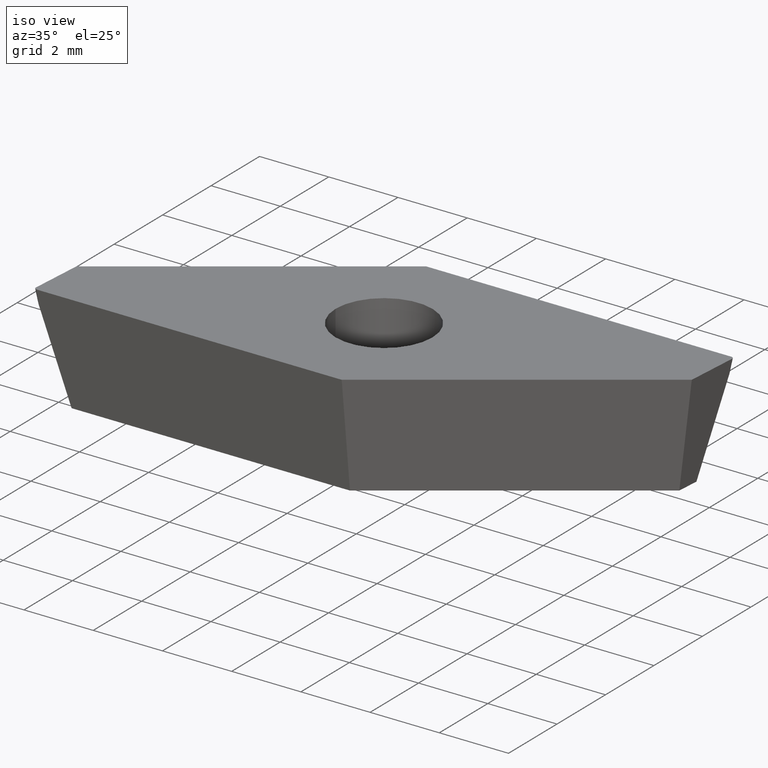
[diagram: clean part render]
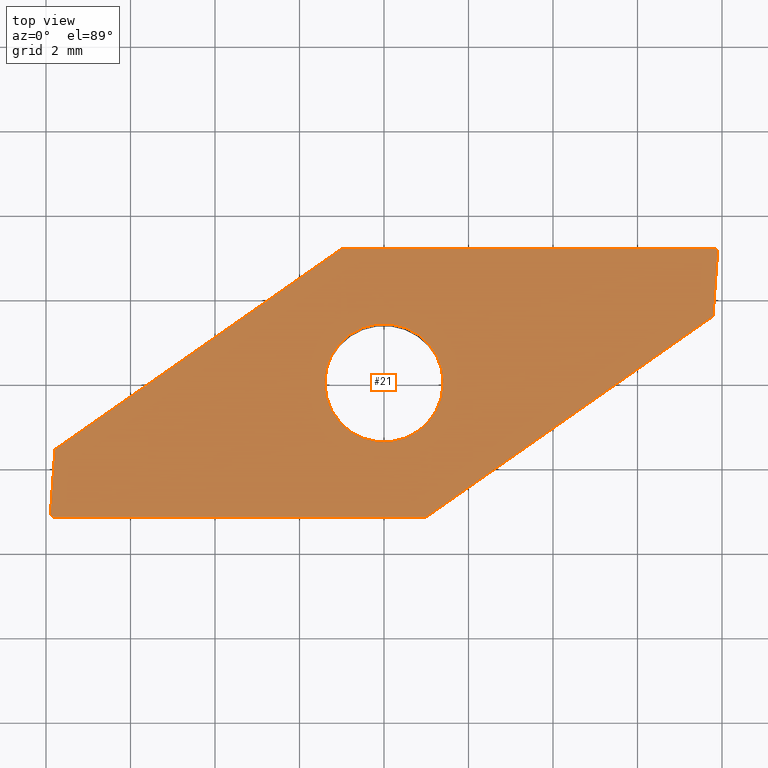
[diagram: tour spotlight — one face highlighted and labeled with its STEP entity id]
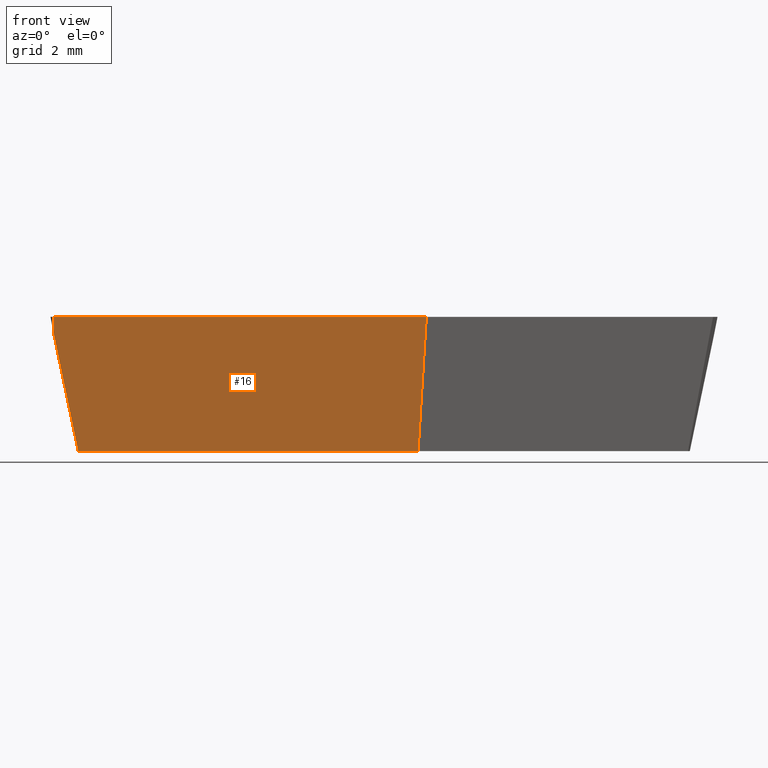
[diagram: tour spotlight — one face highlighted and labeled with its STEP entity id]
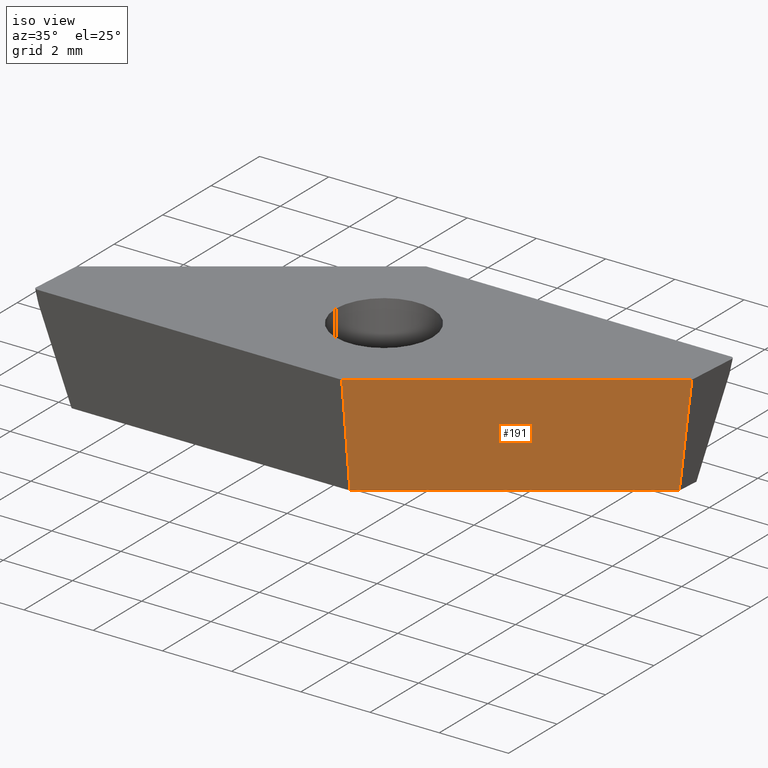
[diagram: tour spotlight — one face highlighted and labeled with its STEP entity id]
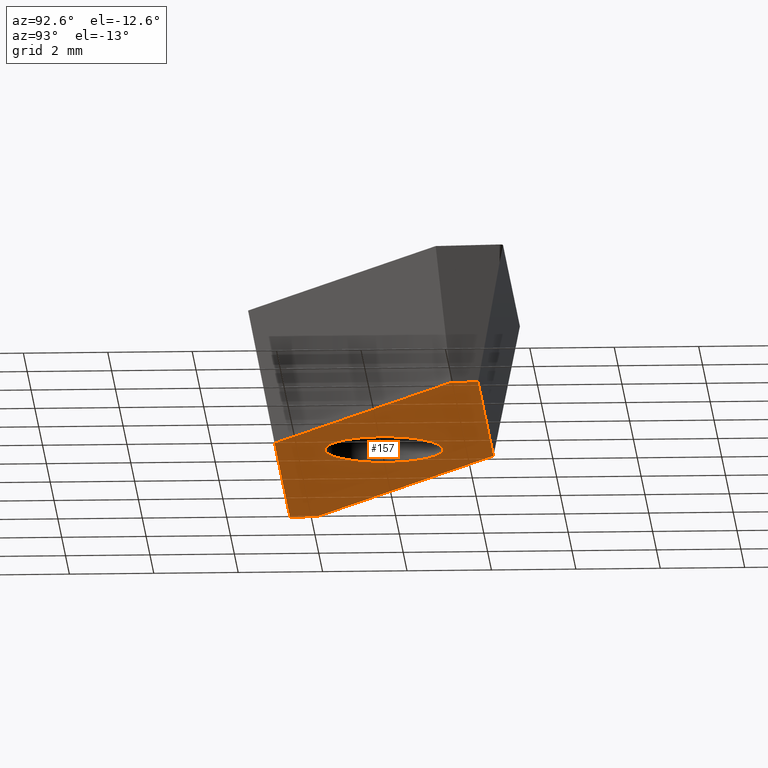
[diagram: tour spotlight — one face highlighted and labeled with its STEP entity id]
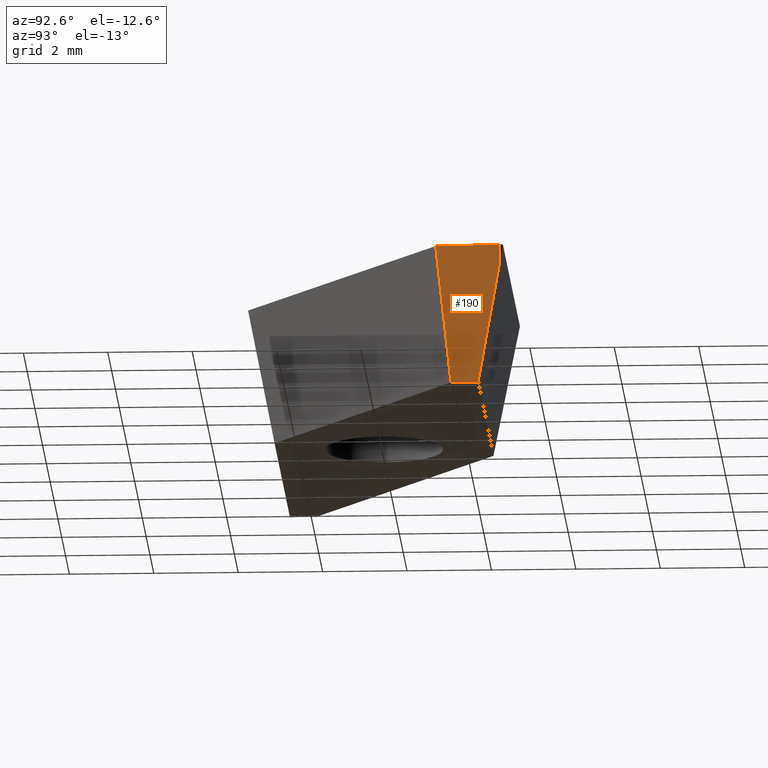
[diagram: tour spotlight — one face highlighted and labeled with its STEP entity id]
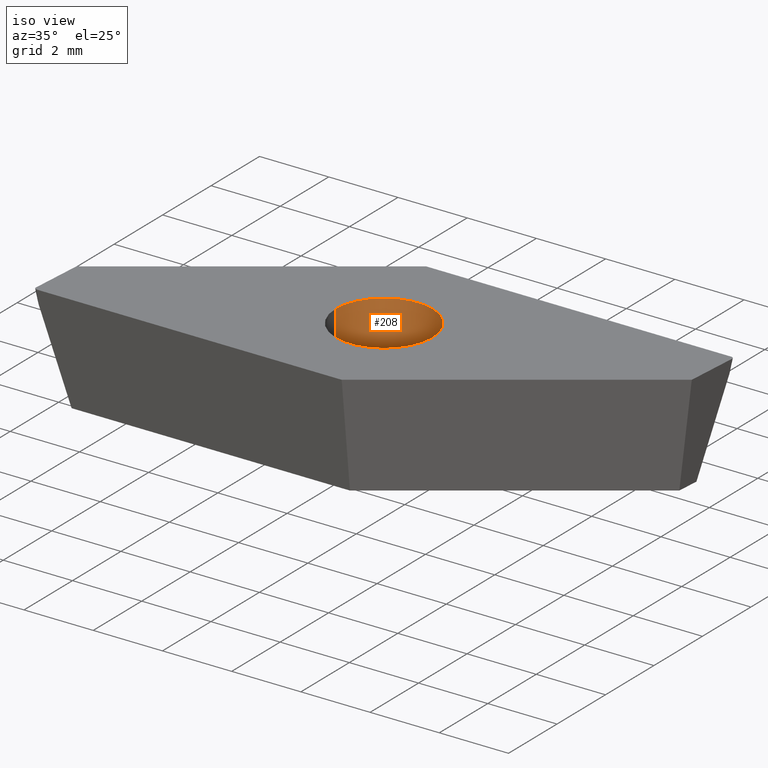
[diagram: tour spotlight — one face highlighted and labeled with its STEP entity id]
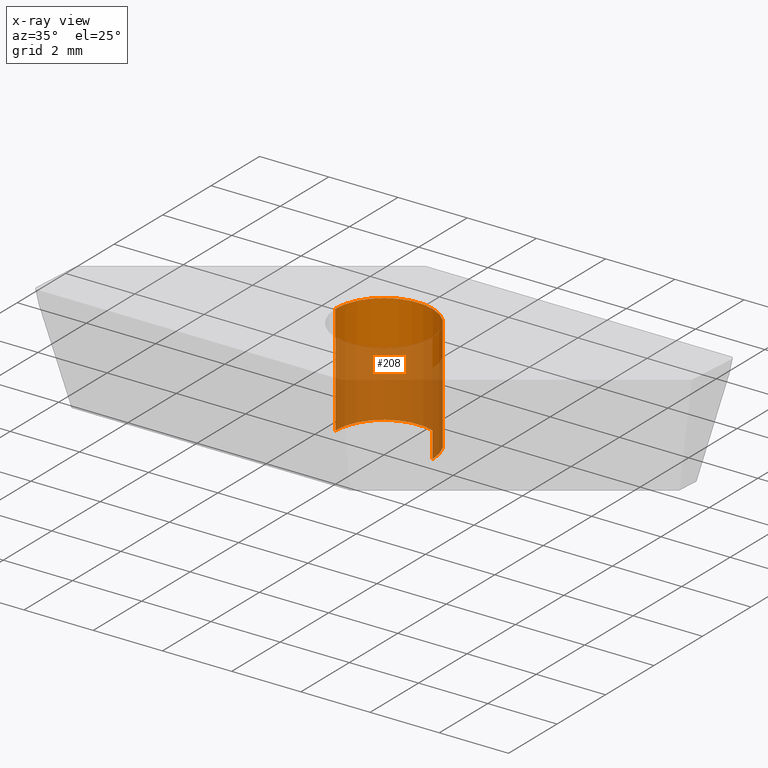
[diagram: x-ray of the same camera — body ghosted, this tour face saturated]
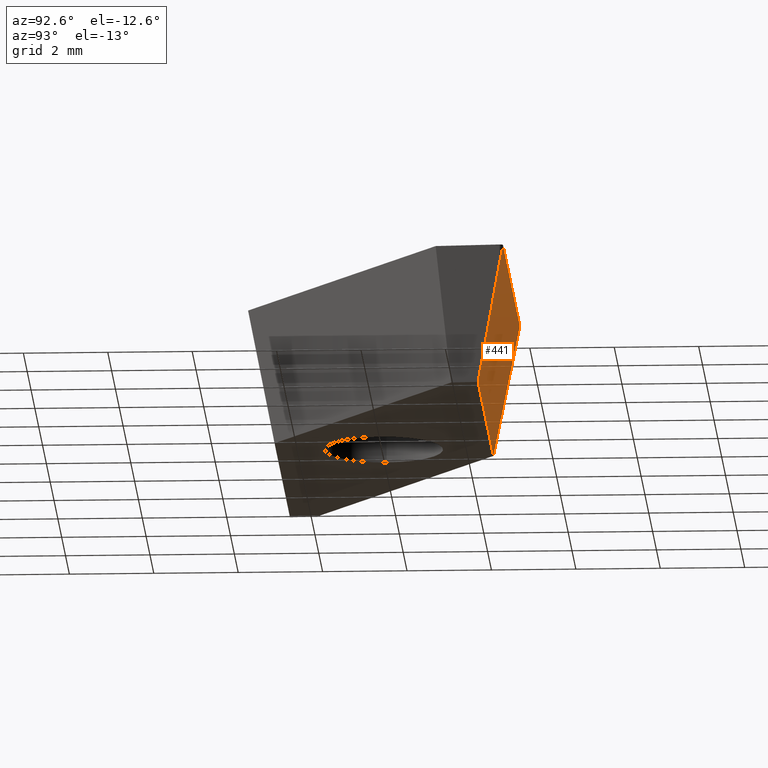
[diagram: tour spotlight — one face highlighted and labeled with its STEP entity id]
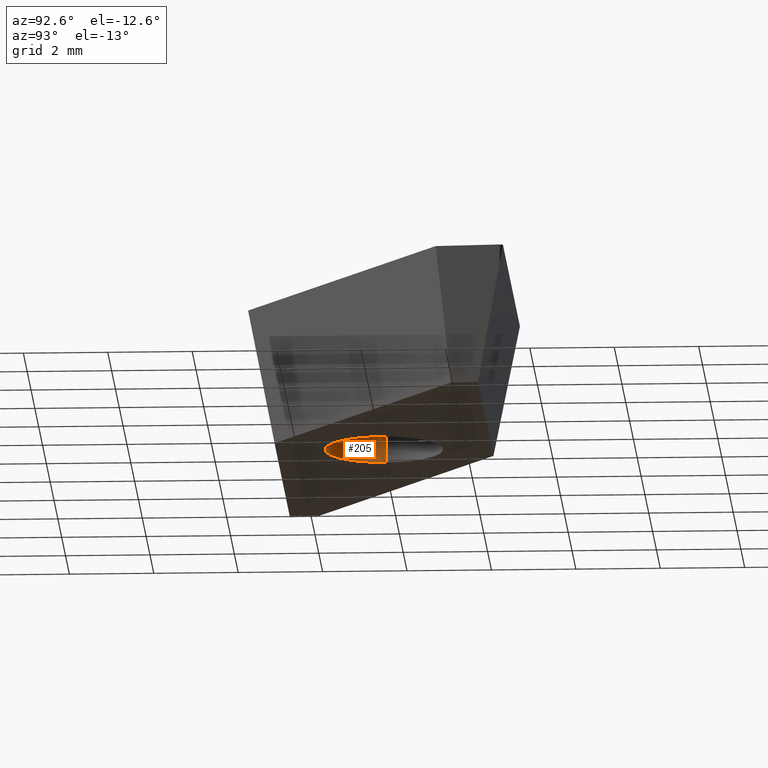
[diagram: tour spotlight — one face highlighted and labeled with its STEP entity id]
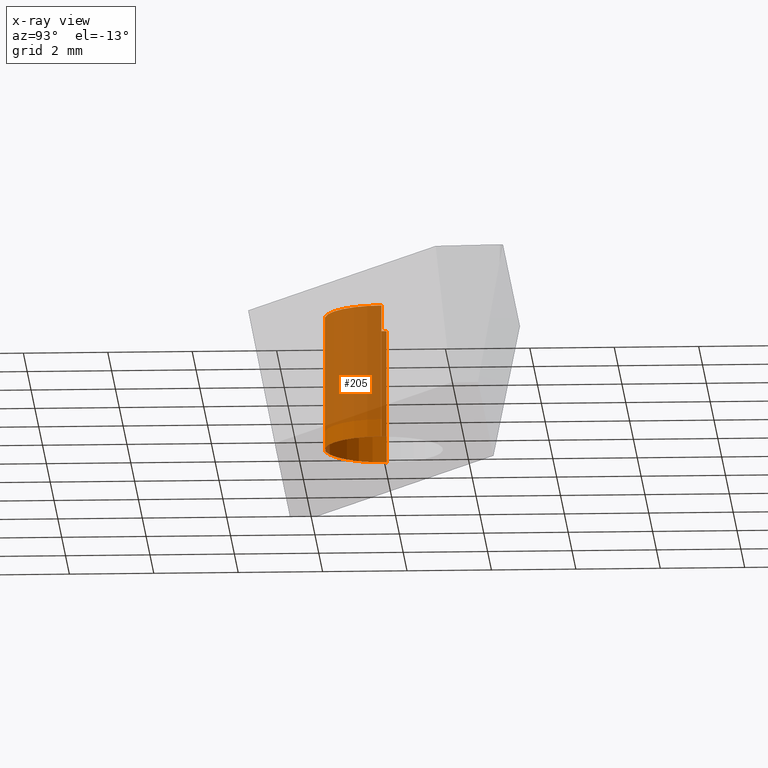
[diagram: x-ray of the same camera — body ghosted, this tour face saturated]
A machine part: a face-by-face anatomy tour. The part has 13 B-rep faces; the first image is the clean iso view, then the 8 largest visible faces are spotlighted one at a time (largest first), each with its STEP entity span.

Face 1 — top view, entity #21. In plain terms, the highlighted planar face has unit normal (0, 0, -1).
Definition (entity closure, byte-faithful):
#6 = CIRCLE ( 'NONE', #213, 0.08000000000000021000 ) ;
#7 = CARTESIAN_POINT ( 'NONE',  ( -7.788289079147451900, -1.577459403657731600, 0.0000000000000000000 ) ) ;
#11 = CARTESIAN_POINT ( 'NONE',  ( -7.894015627218814200, -3.089419482100470600, 0.0000000000000000000 ) ) ;
#12 = CARTESIAN_POINT ( 'NONE',  ( -7.814210503198028200, -3.095000000000000600, 0.0000000000000000000 ) ) ;
#13 = DIRECTION ( 'NONE',  ( -1.000000000000000000, 0.0000000000000000000, 0.0000000000000000000 ) ) ;
#14 = DIRECTION ( 'NONE',  ( -1.000000000000000000, -9.744461978823348800E-017, -0.0000000000000000000 ) ) ;
#21 = ADVANCED_FACE ( 'NONE', ( #392, #159 ), #179, .F. ) ;
#23 = DIRECTION ( 'NONE',  ( -0.0000000000000000000, -0.0000000000000000000, 1.000000000000000000 ) ) ;
#36 = VECTOR ( 'NONE', #43, 1000.000000000000100 ) ;
#43 = DIRECTION ( 'NONE',  ( 0.8191520442889952400, 0.5735764363510412700, -0.0000000000000000000 ) ) ;
#44 = CARTESIAN_POINT ( 'NONE',  ( -1.001073654690764600, 3.174999999999999800, 0.0000000000000000000 ) ) ;
#45 = CARTESIAN_POINT ( 'NONE',  ( 0.0000000000000000000, 0.0000000000000000000, 0.0000000000000000000 ) ) ;
#47 = CIRCLE ( 'NONE', #427, 1.399999999999999900 ) ;
#66 = CIRCLE ( 'NONE', #260, 0.08000000000000021000 ) ;
#72 = CARTESIAN_POINT ( 'NONE',  ( -7.788289079147451900, -1.577459403657731600, 0.0000000000000000000 ) ) ;
#75 = DIRECTION ( 'NONE',  ( -0.8191520442889951300, -0.5735764363510415000, -0.0000000000000000000 ) ) ;
#82 = LINE ( 'NONE', #100, #364 ) ;
#88 = AXIS2_PLACEMENT_3D ( 'NONE', #356, #108, #13 ) ;
#92 = CARTESIAN_POINT ( 'NONE',  ( 1.001073654690762600, -3.174999999999999800, 0.0000000000000000000 ) ) ;
#93 = DIRECTION ( 'NONE',  ( 0.0000000000000000000, 0.0000000000000000000, 1.000000000000000000 ) ) ;
#94 = CARTESIAN_POINT ( 'NONE',  ( -7.814210503198028200, -3.175000000000000700, 0.0000000000000000000 ) ) ;
#98 = DIRECTION ( 'NONE',  ( 0.06975647374412544100, 0.9975640502598242000, -0.0000000000000000000 ) ) ;
#99 = DIRECTION ( 'NONE',  ( 1.000000000000000000, 0.0000000000000000000, 0.0000000000000000000 ) ) ;
#100 = CARTESIAN_POINT ( 'NONE',  ( 7.900000000000000400, 3.175000000000000700, 0.0000000000000000000 ) ) ;
#108 = DIRECTION ( 'NONE',  ( -0.0000000000000000000, -0.0000000000000000000, 1.000000000000000000 ) ) ;
#112 = CARTESIAN_POINT ( 'NONE',  ( 1.399999999999999900, 0.0000000000000000000, 0.0000000000000000000 ) ) ;
#117 = CARTESIAN_POINT ( 'NONE',  ( 1.001073654690762600, -3.174999999999999800, 0.0000000000000000000 ) ) ;
#120 = DIRECTION ( 'NONE',  ( -0.06975647374412606600, -0.9975640502598242000, -0.0000000000000000000 ) ) ;
#121 = CARTESIAN_POINT ( 'NONE',  ( -7.900000000000002100, -3.175000000000000700, 0.0000000000000000000 ) ) ;
#128 = AXIS2_PLACEMENT_3D ( 'NONE', #45, #93, #147 ) ;
#129 = VERTEX_POINT ( 'NONE', #273 ) ;
#130 = CARTESIAN_POINT ( 'NONE',  ( 7.894015627218812400, 3.089419482100470600, 0.0000000000000000000 ) ) ;
#140 = DIRECTION ( 'NONE',  ( 1.000000000000000000, 9.744461978823348800E-017, -0.0000000000000000000 ) ) ;
#144 = VERTEX_POINT ( 'NONE', #7 ) ;
#147 = DIRECTION ( 'NONE',  ( 1.000000000000000000, 0.0000000000000000000, 0.0000000000000000000 ) ) ;
#149 = VERTEX_POINT ( 'NONE', #92 ) ;
#154 = CARTESIAN_POINT ( 'NONE',  ( 7.788289079147451100, 1.577459403657729400, 0.0000000000000000000 ) ) ;
#159 = FACE_OUTER_BOUND ( 'NONE', #434, .T. ) ;
#172 = CARTESIAN_POINT ( 'NONE',  ( 7.788289079147451100, 1.577459403657729400, 0.0000000000000000000 ) ) ;
#173 = CARTESIAN_POINT ( 'NONE',  ( -7.814210503198028200, -3.095000000000000600, 0.0000000000000000000 ) ) ;
#179 = PLANE ( 'NONE',  #355 ) ;
#183 = VERTEX_POINT ( 'NONE', #394 ) ;
#186 = VERTEX_POINT ( 'NONE', #218 ) ;
#188 = VERTEX_POINT ( 'NONE', #227 ) ;
#194 = VERTEX_POINT ( 'NONE', #11 ) ;
#197 = CARTESIAN_POINT ( 'NONE',  ( 0.0000000000000000000, 0.0000000000000000000, 0.0000000000000000000 ) ) ;
#203 = DIRECTION ( 'NONE',  ( 0.0000000000000000000, 0.0000000000000000000, 1.000000000000000000 ) ) ;
#209 = CARTESIAN_POINT ( 'NONE',  ( 0.0000000000000000000, 0.0000000000000000000, 0.0000000000000000000 ) ) ;
#213 = AXIS2_PLACEMENT_3D ( 'NONE', #12, #23, #389 ) ;
#218 = CARTESIAN_POINT ( 'NONE',  ( 7.814210503198026500, 3.175000000000000700, 0.0000000000000000000 ) ) ;
#220 = DIRECTION ( 'NONE',  ( -0.0000000000000000000, -0.0000000000000000000, 1.000000000000000000 ) ) ;
#227 = CARTESIAN_POINT ( 'NONE',  ( -7.894210503198029200, -3.095000000000000600, 0.0000000000000000000 ) ) ;
#233 = CIRCLE ( 'NONE', #128, 1.399999999999999900 ) ;
#237 = DIRECTION ( 'NONE',  ( -1.000000000000000000, 0.0000000000000000000, 0.0000000000000000000 ) ) ;
#241 = EDGE_CURVE ( 'NONE', #188, #354, #66, .T. ) ;
#246 = VERTEX_POINT ( 'NONE', #112 ) ;
#260 = AXIS2_PLACEMENT_3D ( 'NONE', #173, #220, #237 ) ;
#263 = CIRCLE ( 'NONE', #88, 0.08000000000000021000 ) ;
#273 = CARTESIAN_POINT ( 'NONE',  ( -1.399999999999999900, 1.714505518806294100E-016, 0.0000000000000000000 ) ) ;
#286 = DIRECTION ( 'NONE',  ( -1.000000000000000000, 0.0000000000000000000, -0.0000000000000000000 ) ) ;
#302 = EDGE_CURVE ( 'NONE', #129, #246, #47, .T. ) ;
#304 = VECTOR ( 'NONE', #14, 1000.000000000000000 ) ;
#307 = ORIENTED_EDGE ( 'NONE', *, *, #450, .F. ) ;
#309 = ORIENTED_EDGE ( 'NONE', *, *, #302, .F. ) ;
#310 = ORIENTED_EDGE ( 'NONE', *, *, #421, .T. ) ;
#312 = ORIENTED_EDGE ( 'NONE', *, *, #446, .T. ) ;
#313 = VERTEX_POINT ( 'NONE', #172 ) ;
#314 = ORIENTED_EDGE ( 'NONE', *, *, #433, .T. ) ;
#315 = ORIENTED_EDGE ( 'NONE', *, *, #420, .T. ) ;
#317 = ORIENTED_EDGE ( 'NONE', *, *, #404, .T. ) ;
#319 = LINE ( 'NONE', #44, #304 ) ;
#320 = ORIENTED_EDGE ( 'NONE', *, *, #361, .T. ) ;
#324 = ORIENTED_EDGE ( 'NONE', *, *, #241, .T. ) ;
#326 = ORIENTED_EDGE ( 'NONE', *, *, #411, .T. ) ;
#328 = ORIENTED_EDGE ( 'NONE', *, *, #391, .T. ) ;
#342 = LINE ( 'NONE', #154, #36 ) ;
#351 = EDGE_LOOP ( 'NONE', ( #307, #309 ) ) ;
#354 = VERTEX_POINT ( 'NONE', #94 ) ;
#355 = AXIS2_PLACEMENT_3D ( 'NONE', #197, #375, #286 ) ;
#356 = CARTESIAN_POINT ( 'NONE',  ( 7.814210503198026500, 3.095000000000000600, 0.0000000000000000000 ) ) ;
#361 = EDGE_CURVE ( 'NONE', #194, #188, #6, .T. ) ;
#364 = VECTOR ( 'NONE', #98, 1000.000000000000200 ) ;
#366 = VERTEX_POINT ( 'NONE', #130 ) ;
#375 = DIRECTION ( 'NONE',  ( 0.0000000000000000000, 0.0000000000000000000, -1.000000000000000000 ) ) ;
#385 = VECTOR ( 'NONE', #75, 1000.000000000000100 ) ;
#386 = VECTOR ( 'NONE', #140, 1000.000000000000000 ) ;
#389 = DIRECTION ( 'NONE',  ( -1.000000000000000000, 1.626303258728252200E-014, 0.0000000000000000000 ) ) ;
#391 = EDGE_CURVE ( 'NONE', #149, #313, #342, .T. ) ;
#392 = FACE_BOUND ( 'NONE', #351, .T. ) ;
#394 = CARTESIAN_POINT ( 'NONE',  ( -1.001073654690764600, 3.174999999999999800, 0.0000000000000000000 ) ) ;
#403 = LINE ( 'NONE', #117, #386 ) ;
#404 = EDGE_CURVE ( 'NONE', #144, #194, #422, .T. ) ;
#410 = LINE ( 'NONE', #72, #385 ) ;
#411 = EDGE_CURVE ( 'NONE', #354, #149, #403, .T. ) ;
#412 = VECTOR ( 'NONE', #120, 1000.000000000000000 ) ;
#420 = EDGE_CURVE ( 'NONE', #183, #144, #410, .T. ) ;
#421 = EDGE_CURVE ( 'NONE', #313, #366, #82, .T. ) ;
#422 = LINE ( 'NONE', #121, #412 ) ;
#427 = AXIS2_PLACEMENT_3D ( 'NONE', #209, #203, #99 ) ;
#433 = EDGE_CURVE ( 'NONE', #186, #183, #319, .T. ) ;
#434 = EDGE_LOOP ( 'NONE', ( #310, #312, #314, #315, #317, #320, #324, #326, #328 ) ) ;
#446 = EDGE_CURVE ( 'NONE', #366, #186, #263, .T. ) ;
#450 = EDGE_CURVE ( 'NONE', #246, #129, #233, .T. ) ;

Face 2 — front view, entity #16. In plain terms, the highlighted planar face has unit normal (0, -0.9816, -0.1908).
Definition (entity closure, byte-faithful):
#1 = CARTESIAN_POINT ( 'NONE',  ( 1.001073654690762600, -2.556870616942053400, -3.180000000000000200 ) ) ;
#2 = FACE_OUTER_BOUND ( 'NONE', #383, .T. ) ;
#8 = DIRECTION ( 'NONE',  ( 1.000000000000000000, 9.744461978823350000E-017, 0.0000000000000000000 ) ) ;
#16 = ADVANCED_FACE ( 'NONE', ( #2 ), #181, .T. ) ;
#34 = CARTESIAN_POINT ( 'NONE',  ( -7.237137390861798600, -2.556870616942054300, -3.180000000000000200 ) ) ;
#63 = DIRECTION ( 'NONE',  ( -0.2004640746510998900, -0.1869357738407769500, 0.9617011860410842300 ) ) ;
#65 = CARTESIAN_POINT ( 'NONE',  ( -7.900000000000002100, -3.175000000000000700, 0.0000000000000000000 ) ) ;
#69 = VECTOR ( 'NONE', #175, 1000.000000000000100 ) ;
#78 = DIRECTION ( 'NONE',  ( -1.859331000664225100E-017, 0.1908089953765452500, -0.9816271834476638600 ) ) ;
#80 = CARTESIAN_POINT ( 'NONE',  ( -7.814210503198028200, -3.175000000000000700, 3.074600158728586900E-018 ) ) ;
#92 = CARTESIAN_POINT ( 'NONE',  ( 1.001073654690762600, -3.174999999999999800, 0.0000000000000000000 ) ) ;
#94 = CARTESIAN_POINT ( 'NONE',  ( -7.814210503198028200, -3.175000000000000700, 0.0000000000000000000 ) ) ;
#102 = LINE ( 'NONE', #252, #69 ) ;
#117 = CARTESIAN_POINT ( 'NONE',  ( 1.001073654690762600, -3.174999999999999800, 0.0000000000000000000 ) ) ;
#135 = VERTEX_POINT ( 'NONE', #282 ) ;
#140 = DIRECTION ( 'NONE',  ( 1.000000000000000000, 9.744461978823348800E-017, -0.0000000000000000000 ) ) ;
#149 = VERTEX_POINT ( 'NONE', #92 ) ;
#164 = CARTESIAN_POINT ( 'NONE',  ( -7.814210503198028200, -3.095000000000000600, -0.4115643212776241600 ) ) ;
#170 = DIRECTION ( 'NONE',  ( 9.565428766485213700E-017, -0.9816271834476639800, -0.1908089953765452800 ) ) ;
#175 = DIRECTION ( 'NONE',  ( 0.06005326349153969300, -0.1904646183547176200, 0.9798555172570124800 ) ) ;
#181 = PLANE ( 'NONE',  #372 ) ;
#193 = CARTESIAN_POINT ( 'NONE',  ( 1.001073654690762600, -3.174999999999999800, 0.0000000000000000000 ) ) ;
#199 = DIRECTION ( 'NONE',  ( 0.0000000000000000000, 0.1908089953765452800, -0.9816271834476639800 ) ) ;
#226 = EDGE_CURVE ( 'NONE', #135, #149, #102, .T. ) ;
#251 = VERTEX_POINT ( 'NONE', #164 ) ;
#252 = CARTESIAN_POINT ( 'NONE',  ( 1.001073654690761700, -3.174999999999999800, 4.532429341667184100E-017 ) ) ;
#271 = ORIENTED_EDGE ( 'NONE', *, *, #411, .F. ) ;
#274 = LINE ( 'NONE', #1, #290 ) ;
#276 = ORIENTED_EDGE ( 'NONE', *, *, #413, .T. ) ;
#278 = ORIENTED_EDGE ( 'NONE', *, *, #431, .F. ) ;
#280 = ORIENTED_EDGE ( 'NONE', *, *, #443, .T. ) ;
#281 = ORIENTED_EDGE ( 'NONE', *, *, #226, .T. ) ;
#282 = CARTESIAN_POINT ( 'NONE',  ( 0.8061782088420801400, -2.556870616942053400, -3.180000000000000200 ) ) ;
#290 = VECTOR ( 'NONE', #8, 1000.000000000000000 ) ;
#332 = VECTOR ( 'NONE', #63, 1000.000000000000100 ) ;
#354 = VERTEX_POINT ( 'NONE', #94 ) ;
#362 = LINE ( 'NONE', #65, #332 ) ;
#372 = AXIS2_PLACEMENT_3D ( 'NONE', #193, #170, #199 ) ;
#374 = VERTEX_POINT ( 'NONE', #34 ) ;
#383 = EDGE_LOOP ( 'NONE', ( #271, #276, #278, #280, #281 ) ) ;
#384 = VECTOR ( 'NONE', #78, 1000.000000000000100 ) ;
#386 = VECTOR ( 'NONE', #140, 1000.000000000000000 ) ;
#387 = LINE ( 'NONE', #80, #384 ) ;
#403 = LINE ( 'NONE', #117, #386 ) ;
#411 = EDGE_CURVE ( 'NONE', #354, #149, #403, .T. ) ;
#413 = EDGE_CURVE ( 'NONE', #354, #251, #387, .T. ) ;
#431 = EDGE_CURVE ( 'NONE', #374, #251, #362, .T. ) ;
#443 = EDGE_CURVE ( 'NONE', #374, #135, #274, .T. ) ;

Face 3 — iso view, entity #191. In plain terms, the highlighted planar face has unit normal (0.563, -0.8041, -0.1908).
Definition (entity closure, byte-faithful):
#25 = CARTESIAN_POINT ( 'NONE',  ( 7.788289079147451100, 1.577459403657729400, 3.148184459698170000E-018 ) ) ;
#32 = DIRECTION ( 'NONE',  ( 0.1832382521941806600, -0.1036712150141735900, 0.9775868360970839700 ) ) ;
#36 = VECTOR ( 'NONE', #43, 1000.000000000000100 ) ;
#43 = DIRECTION ( 'NONE',  ( 0.8191520442889952400, 0.5735764363510412700, -0.0000000000000000000 ) ) ;
#61 = LINE ( 'NONE', #206, #395 ) ;
#69 = VECTOR ( 'NONE', #175, 1000.000000000000100 ) ;
#84 = FACE_OUTER_BOUND ( 'NONE', #327, .T. ) ;
#92 = CARTESIAN_POINT ( 'NONE',  ( 1.001073654690762600, -3.174999999999999800, 0.0000000000000000000 ) ) ;
#102 = LINE ( 'NONE', #252, #69 ) ;
#127 = DIRECTION ( 'NONE',  ( 0.8191520442889951300, 0.5735764363510412700, 0.0000000000000000000 ) ) ;
#135 = VERTEX_POINT ( 'NONE', #282 ) ;
#149 = VERTEX_POINT ( 'NONE', #92 ) ;
#154 = CARTESIAN_POINT ( 'NONE',  ( 7.788289079147451100, 1.577459403657729400, 0.0000000000000000000 ) ) ;
#172 = CARTESIAN_POINT ( 'NONE',  ( 7.788289079147451100, 1.577459403657729400, 0.0000000000000000000 ) ) ;
#175 = DIRECTION ( 'NONE',  ( 0.06005326349153969300, -0.1904646183547176200, 0.9798555172570124800 ) ) ;
#177 = CARTESIAN_POINT ( 'NONE',  ( 7.192231910145610000, 1.914692324122640600, -3.180000000000000200 ) ) ;
#191 = ADVANCED_FACE ( 'NONE', ( #84 ), #289, .T. ) ;
#206 = CARTESIAN_POINT ( 'NONE',  ( 7.433744630409206500, 2.083801351424741500, -3.180000000000000200 ) ) ;
#217 = CARTESIAN_POINT ( 'NONE',  ( 7.788289079147451100, 1.577459403657729400, 0.0000000000000000000 ) ) ;
#226 = EDGE_CURVE ( 'NONE', #135, #149, #102, .T. ) ;
#243 = DIRECTION ( 'NONE',  ( 0.8191520442889951300, 0.5735764363510412700, 0.0000000000000000000 ) ) ;
#252 = CARTESIAN_POINT ( 'NONE',  ( 1.001073654690761700, -3.174999999999999800, 4.532429341667184100E-017 ) ) ;
#256 = VERTEX_POINT ( 'NONE', #177 ) ;
#257 = ORIENTED_EDGE ( 'NONE', *, *, #391, .F. ) ;
#262 = ORIENTED_EDGE ( 'NONE', *, *, #226, .F. ) ;
#265 = ORIENTED_EDGE ( 'NONE', *, *, #357, .T. ) ;
#270 = ORIENTED_EDGE ( 'NONE', *, *, #437, .T. ) ;
#282 = CARTESIAN_POINT ( 'NONE',  ( 0.8061782088420801400, -2.556870616942053400, -3.180000000000000200 ) ) ;
#287 = VECTOR ( 'NONE', #32, 1000.000000000000000 ) ;
#289 = PLANE ( 'NONE',  #377 ) ;
#308 = LINE ( 'NONE', #25, #287 ) ;
#313 = VERTEX_POINT ( 'NONE', #172 ) ;
#327 = EDGE_LOOP ( 'NONE', ( #257, #262, #265, #270 ) ) ;
#330 = DIRECTION ( 'NONE',  ( 0.5630382217072209500, -0.8041019140508023400, -0.1908089953765452500 ) ) ;
#342 = LINE ( 'NONE', #154, #36 ) ;
#357 = EDGE_CURVE ( 'NONE', #135, #256, #61, .T. ) ;
#377 = AXIS2_PLACEMENT_3D ( 'NONE', #217, #330, #243 ) ;
#391 = EDGE_CURVE ( 'NONE', #149, #313, #342, .T. ) ;
#395 = VECTOR ( 'NONE', #127, 1000.000000000000000 ) ;
#437 = EDGE_CURVE ( 'NONE', #256, #313, #308, .T. ) ;

Face 4 — auxiliary view, entity #157. In plain terms, the highlighted planar face has unit normal (0, 0, -1).
Definition (entity closure, byte-faithful):
#1 = CARTESIAN_POINT ( 'NONE',  ( 1.001073654690762600, -2.556870616942053400, -3.180000000000000200 ) ) ;
#8 = DIRECTION ( 'NONE',  ( 1.000000000000000000, 9.744461978823350000E-017, 0.0000000000000000000 ) ) ;
#9 = CARTESIAN_POINT ( 'NONE',  ( 0.0000000000000000000, 0.0000000000000000000, -3.180000000000000200 ) ) ;
#15 = PLANE ( 'NONE',  #379 ) ;
#24 = CARTESIAN_POINT ( 'NONE',  ( 0.0000000000000000000, 0.0000000000000000000, -3.180000000000000200 ) ) ;
#26 = DIRECTION ( 'NONE',  ( 0.06975647374412545500, 0.9975640502598242000, 0.0000000000000000000 ) ) ;
#34 = CARTESIAN_POINT ( 'NONE',  ( -7.237137390861798600, -2.556870616942054300, -3.180000000000000200 ) ) ;
#41 = CARTESIAN_POINT ( 'NONE',  ( 7.283376349052109500, 3.218118526079754900, -3.180000000000000200 ) ) ;
#56 = DIRECTION ( 'NONE',  ( 0.0000000000000000000, 0.0000000000000000000, -1.000000000000000000 ) ) ;
#61 = LINE ( 'NONE', #206, #395 ) ;
#83 = DIRECTION ( 'NONE',  ( 1.000000000000000000, 0.0000000000000000000, 0.0000000000000000000 ) ) ;
#86 = DIRECTION ( 'NONE',  ( -1.000000000000000000, 0.0000000000000000000, -0.0000000000000000000 ) ) ;
#95 = LINE ( 'NONE', #435, #101 ) ;
#101 = VECTOR ( 'NONE', #224, 1000.000000000000000 ) ;
#104 = DIRECTION ( 'NONE',  ( 0.0000000000000000000, 0.0000000000000000000, 1.000000000000000000 ) ) ;
#113 = LINE ( 'NONE', #292, #133 ) ;
#115 = DIRECTION ( 'NONE',  ( -0.06975647374412608000, -0.9975640502598242000, 0.0000000000000000000 ) ) ;
#118 = CARTESIAN_POINT ( 'NONE',  ( -7.283376349052111300, -3.218118526079755300, -3.180000000000000200 ) ) ;
#125 = CARTESIAN_POINT ( 'NONE',  ( -7.192231910145610900, -1.914692324122642800, -3.180000000000000200 ) ) ;
#127 = DIRECTION ( 'NONE',  ( 0.8191520442889951300, 0.5735764363510412700, 0.0000000000000000000 ) ) ;
#133 = VECTOR ( 'NONE', #146, 1000.000000000000000 ) ;
#135 = VERTEX_POINT ( 'NONE', #282 ) ;
#141 = CARTESIAN_POINT ( 'NONE',  ( -0.8061782088420828000, 2.556870616942053400, -3.180000000000000200 ) ) ;
#146 = DIRECTION ( 'NONE',  ( -1.000000000000000000, -9.744461978823350000E-017, 0.0000000000000000000 ) ) ;
#148 = DIRECTION ( 'NONE',  ( 1.000000000000000000, 0.0000000000000000000, 0.0000000000000000000 ) ) ;
#151 = DIRECTION ( 'NONE',  ( 0.0000000000000000000, 0.0000000000000000000, 1.000000000000000000 ) ) ;
#152 = CARTESIAN_POINT ( 'NONE',  ( 0.0000000000000000000, 0.0000000000000000000, -3.180000000000000200 ) ) ;
#155 = FACE_OUTER_BOUND ( 'NONE', #376, .T. ) ;
#157 = ADVANCED_FACE ( 'NONE', ( #174, #155 ), #15, .T. ) ;
#158 = EDGE_CURVE ( 'NONE', #323, #344, #113, .T. ) ;
#174 = FACE_BOUND ( 'NONE', #279, .T. ) ;
#177 = CARTESIAN_POINT ( 'NONE',  ( 7.192231910145610000, 1.914692324122640600, -3.180000000000000200 ) ) ;
#185 = EDGE_CURVE ( 'NONE', #344, #393, #95, .T. ) ;
#198 = CIRCLE ( 'NONE', #402, 1.399999999999999900 ) ;
#206 = CARTESIAN_POINT ( 'NONE',  ( 7.433744630409206500, 2.083801351424741500, -3.180000000000000200 ) ) ;
#221 = VERTEX_POINT ( 'NONE', #295 ) ;
#224 = DIRECTION ( 'NONE',  ( -0.8191520442889950200, -0.5735764363510415000, 0.0000000000000000000 ) ) ;
#230 = CARTESIAN_POINT ( 'NONE',  ( 7.237137390861797700, 2.556870616942054300, -3.180000000000000200 ) ) ;
#256 = VERTEX_POINT ( 'NONE', #177 ) ;
#266 = CARTESIAN_POINT ( 'NONE',  ( 1.399999999999999900, 0.0000000000000000000, -3.180000000000000200 ) ) ;
#274 = LINE ( 'NONE', #1, #290 ) ;
#279 = EDGE_LOOP ( 'NONE', ( #284, #288 ) ) ;
#282 = CARTESIAN_POINT ( 'NONE',  ( 0.8061782088420801400, -2.556870616942053400, -3.180000000000000200 ) ) ;
#284 = ORIENTED_EDGE ( 'NONE', *, *, #388, .T. ) ;
#288 = ORIENTED_EDGE ( 'NONE', *, *, #409, .T. ) ;
#290 = VECTOR ( 'NONE', #8, 1000.000000000000000 ) ;
#292 = CARTESIAN_POINT ( 'NONE',  ( -1.001073654690764600, 2.556870616942053400, -3.180000000000000200 ) ) ;
#294 = ORIENTED_EDGE ( 'NONE', *, *, #158, .F. ) ;
#295 = CARTESIAN_POINT ( 'NONE',  ( -1.399999999999999900, 1.714505518806294100E-016, -3.180000000000000200 ) ) ;
#296 = ORIENTED_EDGE ( 'NONE', *, *, #436, .F. ) ;
#297 = ORIENTED_EDGE ( 'NONE', *, *, #357, .F. ) ;
#298 = LINE ( 'NONE', #41, #343 ) ;
#299 = ORIENTED_EDGE ( 'NONE', *, *, #443, .F. ) ;
#303 = ORIENTED_EDGE ( 'NONE', *, *, #407, .F. ) ;
#305 = ORIENTED_EDGE ( 'NONE', *, *, #185, .F. ) ;
#323 = VERTEX_POINT ( 'NONE', #230 ) ;
#335 = VERTEX_POINT ( 'NONE', #266 ) ;
#343 = VECTOR ( 'NONE', #26, 1000.000000000000100 ) ;
#344 = VERTEX_POINT ( 'NONE', #141 ) ;
#357 = EDGE_CURVE ( 'NONE', #135, #256, #61, .T. ) ;
#374 = VERTEX_POINT ( 'NONE', #34 ) ;
#376 = EDGE_LOOP ( 'NONE', ( #294, #296, #297, #299, #303, #305 ) ) ;
#379 = AXIS2_PLACEMENT_3D ( 'NONE', #9, #56, #86 ) ;
#388 = EDGE_CURVE ( 'NONE', #335, #221, #198, .T. ) ;
#393 = VERTEX_POINT ( 'NONE', #125 ) ;
#395 = VECTOR ( 'NONE', #127, 1000.000000000000000 ) ;
#397 = CIRCLE ( 'NONE', #426, 1.399999999999999900 ) ;
#402 = AXIS2_PLACEMENT_3D ( 'NONE', #152, #151, #148 ) ;
#405 = VECTOR ( 'NONE', #115, 1000.000000000000100 ) ;
#407 = EDGE_CURVE ( 'NONE', #393, #374, #417, .T. ) ;
#409 = EDGE_CURVE ( 'NONE', #221, #335, #397, .T. ) ;
#417 = LINE ( 'NONE', #118, #405 ) ;
#426 = AXIS2_PLACEMENT_3D ( 'NONE', #24, #104, #83 ) ;
#435 = CARTESIAN_POINT ( 'NONE',  ( -7.433744630409207400, -2.083801351424743800, -3.180000000000000200 ) ) ;
#436 = EDGE_CURVE ( 'NONE', #256, #323, #298, .T. ) ;
#443 = EDGE_CURVE ( 'NONE', #374, #135, #274, .T. ) ;

Face 5 — auxiliary view, entity #190. In plain terms, the highlighted planar face has unit normal (0.9792, -0.0685, -0.1908).
Definition (entity closure, byte-faithful):
#25 = CARTESIAN_POINT ( 'NONE',  ( 7.788289079147451100, 1.577459403657729400, 3.148184459698170000E-018 ) ) ;
#26 = DIRECTION ( 'NONE',  ( 0.06975647374412545500, 0.9975640502598242000, 0.0000000000000000000 ) ) ;
#32 = DIRECTION ( 'NONE',  ( 0.1832382521941806600, -0.1036712150141735900, 0.9775868360970839700 ) ) ;
#41 = CARTESIAN_POINT ( 'NONE',  ( 7.283376349052109500, 3.218118526079754900, -3.180000000000000200 ) ) ;
#70 = CARTESIAN_POINT ( 'NONE',  ( 7.900000000000000400, 3.175000000000000700, 0.0000000000000000000 ) ) ;
#74 = FACE_OUTER_BOUND ( 'NONE', #347, .T. ) ;
#82 = LINE ( 'NONE', #100, #364 ) ;
#85 = CARTESIAN_POINT ( 'NONE',  ( 7.894015627218812400, 3.089419482100470600, 1.016439536705160400E-016 ) ) ;
#97 = DIRECTION ( 'NONE',  ( 0.1903441942538345300, -0.01331016267612693300, 0.9816271834476638600 ) ) ;
#98 = DIRECTION ( 'NONE',  ( 0.06975647374412544100, 0.9975640502598242000, -0.0000000000000000000 ) ) ;
#100 = CARTESIAN_POINT ( 'NONE',  ( 7.900000000000000400, 3.175000000000000700, 0.0000000000000000000 ) ) ;
#103 = DIRECTION ( 'NONE',  ( 0.2004640746510997800, 0.1869357738407769500, 0.9617011860410842300 ) ) ;
#130 = CARTESIAN_POINT ( 'NONE',  ( 7.894015627218812400, 3.089419482100470600, 0.0000000000000000000 ) ) ;
#150 = PLANE ( 'NONE',  #418 ) ;
#172 = CARTESIAN_POINT ( 'NONE',  ( 7.788289079147451100, 1.577459403657729400, 0.0000000000000000000 ) ) ;
#177 = CARTESIAN_POINT ( 'NONE',  ( 7.192231910145610000, 1.914692324122640600, -3.180000000000000200 ) ) ;
#190 = ADVANCED_FACE ( 'NONE', ( #74 ), #150, .T. ) ;
#207 = CARTESIAN_POINT ( 'NONE',  ( 7.900000000000000400, 3.175000000000000700, 0.0000000000000000000 ) ) ;
#230 = CARTESIAN_POINT ( 'NONE',  ( 7.237137390861797700, 2.556870616942054300, -3.180000000000000200 ) ) ;
#238 = DIRECTION ( 'NONE',  ( 0.9792359889651950400, -0.06847485084868677700, -0.1908089953765452500 ) ) ;
#244 = ORIENTED_EDGE ( 'NONE', *, *, #436, .T. ) ;
#248 = ORIENTED_EDGE ( 'NONE', *, *, #425, .T. ) ;
#249 = ORIENTED_EDGE ( 'NONE', *, *, #419, .T. ) ;
#254 = ORIENTED_EDGE ( 'NONE', *, *, #421, .F. ) ;
#255 = ORIENTED_EDGE ( 'NONE', *, *, #437, .F. ) ;
#256 = VERTEX_POINT ( 'NONE', #177 ) ;
#267 = CARTESIAN_POINT ( 'NONE',  ( 7.814210503198026500, 3.095000000000000600, -0.4115643212776243200 ) ) ;
#287 = VECTOR ( 'NONE', #32, 1000.000000000000000 ) ;
#298 = LINE ( 'NONE', #41, #343 ) ;
#301 = VERTEX_POINT ( 'NONE', #267 ) ;
#308 = LINE ( 'NONE', #25, #287 ) ;
#313 = VERTEX_POINT ( 'NONE', #172 ) ;
#323 = VERTEX_POINT ( 'NONE', #230 ) ;
#325 = DIRECTION ( 'NONE',  ( -0.1912579077465619300, 0.0000000000000000000, -0.9815398171874677400 ) ) ;
#343 = VECTOR ( 'NONE', #26, 1000.000000000000100 ) ;
#347 = EDGE_LOOP ( 'NONE', ( #244, #248, #249, #254, #255 ) ) ;
#349 = VECTOR ( 'NONE', #103, 1000.000000000000100 ) ;
#364 = VECTOR ( 'NONE', #98, 1000.000000000000200 ) ;
#366 = VERTEX_POINT ( 'NONE', #130 ) ;
#370 = LINE ( 'NONE', #70, #349 ) ;
#378 = VECTOR ( 'NONE', #97, 1000.000000000000100 ) ;
#381 = LINE ( 'NONE', #85, #378 ) ;
#418 = AXIS2_PLACEMENT_3D ( 'NONE', #207, #238, #325 ) ;
#419 = EDGE_CURVE ( 'NONE', #301, #366, #381, .T. ) ;
#421 = EDGE_CURVE ( 'NONE', #313, #366, #82, .T. ) ;
#425 = EDGE_CURVE ( 'NONE', #323, #301, #370, .T. ) ;
#436 = EDGE_CURVE ( 'NONE', #256, #323, #298, .T. ) ;
#437 = EDGE_CURVE ( 'NONE', #256, #313, #308, .T. ) ;

Face 6 — iso view, entity #208. An x-ray twin of the same camera follows (body ghosted, this face saturated) — the face is partly hidden behind the body. In plain terms, the highlighted cylindrical surface (partial cylindrical patch) has radius 1.4 mm, axis along (-0, -0, 1).
Definition (entity closure, byte-faithful):
#45 = CARTESIAN_POINT ( 'NONE',  ( 0.0000000000000000000, 0.0000000000000000000, 0.0000000000000000000 ) ) ;
#57 = CYLINDRICAL_SURFACE ( 'NONE', #300, 1.399999999999999900 ) ;
#62 = ORIENTED_EDGE ( 'NONE', *, *, #116, .T. ) ;
#90 = FACE_OUTER_BOUND ( 'NONE', #350, .T. ) ;
#93 = DIRECTION ( 'NONE',  ( 0.0000000000000000000, 0.0000000000000000000, 1.000000000000000000 ) ) ;
#112 = CARTESIAN_POINT ( 'NONE',  ( 1.399999999999999900, 0.0000000000000000000, 0.0000000000000000000 ) ) ;
#116 = EDGE_CURVE ( 'NONE', #335, #246, #145, .T. ) ;
#128 = AXIS2_PLACEMENT_3D ( 'NONE', #45, #93, #147 ) ;
#129 = VERTEX_POINT ( 'NONE', #273 ) ;
#138 = DIRECTION ( 'NONE',  ( -0.0000000000000000000, -0.0000000000000000000, 1.000000000000000000 ) ) ;
#142 = CARTESIAN_POINT ( 'NONE',  ( -1.399999999999999900, 1.714505518806294100E-016, -3.180000000000000200 ) ) ;
#145 = LINE ( 'NONE', #283, #163 ) ;
#147 = DIRECTION ( 'NONE',  ( 1.000000000000000000, 0.0000000000000000000, 0.0000000000000000000 ) ) ;
#148 = DIRECTION ( 'NONE',  ( 1.000000000000000000, 0.0000000000000000000, 0.0000000000000000000 ) ) ;
#151 = DIRECTION ( 'NONE',  ( 0.0000000000000000000, 0.0000000000000000000, 1.000000000000000000 ) ) ;
#152 = CARTESIAN_POINT ( 'NONE',  ( 0.0000000000000000000, 0.0000000000000000000, -3.180000000000000200 ) ) ;
#163 = VECTOR ( 'NONE', #261, 1000.000000000000000 ) ;
#167 = DIRECTION ( 'NONE',  ( -0.0000000000000000000, -0.0000000000000000000, 1.000000000000000000 ) ) ;
#169 = CARTESIAN_POINT ( 'NONE',  ( 0.0000000000000000000, 0.0000000000000000000, -3.180000000000000200 ) ) ;
#198 = CIRCLE ( 'NONE', #402, 1.399999999999999900 ) ;
#208 = ADVANCED_FACE ( 'NONE', ( #90 ), #57, .F. ) ;
#221 = VERTEX_POINT ( 'NONE', #295 ) ;
#233 = CIRCLE ( 'NONE', #128, 1.399999999999999900 ) ;
#246 = VERTEX_POINT ( 'NONE', #112 ) ;
#261 = DIRECTION ( 'NONE',  ( -0.0000000000000000000, -0.0000000000000000000, 1.000000000000000000 ) ) ;
#266 = CARTESIAN_POINT ( 'NONE',  ( 1.399999999999999900, 0.0000000000000000000, -3.180000000000000200 ) ) ;
#273 = CARTESIAN_POINT ( 'NONE',  ( -1.399999999999999900, 1.714505518806294100E-016, 0.0000000000000000000 ) ) ;
#283 = CARTESIAN_POINT ( 'NONE',  ( 1.399999999999999900, 0.0000000000000000000, -3.180000000000000200 ) ) ;
#295 = CARTESIAN_POINT ( 'NONE',  ( -1.399999999999999900, 1.714505518806294100E-016, -3.180000000000000200 ) ) ;
#300 = AXIS2_PLACEMENT_3D ( 'NONE', #169, #167, #311 ) ;
#311 = DIRECTION ( 'NONE',  ( 1.000000000000000000, 0.0000000000000000000, 0.0000000000000000000 ) ) ;
#335 = VERTEX_POINT ( 'NONE', #266 ) ;
#350 = EDGE_LOOP ( 'NONE', ( #360, #363, #62, #373 ) ) ;
#360 = ORIENTED_EDGE ( 'NONE', *, *, #396, .F. ) ;
#363 = ORIENTED_EDGE ( 'NONE', *, *, #388, .F. ) ;
#373 = ORIENTED_EDGE ( 'NONE', *, *, #450, .T. ) ;
#388 = EDGE_CURVE ( 'NONE', #335, #221, #198, .T. ) ;
#396 = EDGE_CURVE ( 'NONE', #221, #129, #428, .T. ) ;
#402 = AXIS2_PLACEMENT_3D ( 'NONE', #152, #151, #148 ) ;
#423 = VECTOR ( 'NONE', #138, 1000.000000000000000 ) ;
#428 = LINE ( 'NONE', #142, #423 ) ;
#450 = EDGE_CURVE ( 'NONE', #246, #129, #233, .T. ) ;

Face 7 — auxiliary view, entity #441. In plain terms, the highlighted planar face has unit normal (-0, 0.9816, -0.1908).
Definition (entity closure, byte-faithful):
#14 = DIRECTION ( 'NONE',  ( -1.000000000000000000, -9.744461978823348800E-017, -0.0000000000000000000 ) ) ;
#17 = PLANE ( 'NONE',  #166 ) ;
#27 = DIRECTION ( 'NONE',  ( -9.565428766485213700E-017, 0.9816271834476639800, -0.1908089953765452800 ) ) ;
#30 = CARTESIAN_POINT ( 'NONE',  ( -1.001073654690764600, 3.174999999999999800, 0.0000000000000000000 ) ) ;
#44 = CARTESIAN_POINT ( 'NONE',  ( -1.001073654690764600, 3.174999999999999800, 0.0000000000000000000 ) ) ;
#49 = VECTOR ( 'NONE', #178, 1000.000000000000100 ) ;
#53 = LINE ( 'NONE', #234, #49 ) ;
#68 = DIRECTION ( 'NONE',  ( 0.0000000000000000000, 0.1908089953765452800, 0.9816271834476639800 ) ) ;
#70 = CARTESIAN_POINT ( 'NONE',  ( 7.900000000000000400, 3.175000000000000700, 0.0000000000000000000 ) ) ;
#103 = DIRECTION ( 'NONE',  ( 0.2004640746510997800, 0.1869357738407769500, 0.9617011860410842300 ) ) ;
#113 = LINE ( 'NONE', #292, #133 ) ;
#133 = VECTOR ( 'NONE', #146, 1000.000000000000000 ) ;
#136 = DIRECTION ( 'NONE',  ( 1.859331000664225100E-017, -0.1908089953765452500, -0.9816271834476638600 ) ) ;
#137 = EDGE_LOOP ( 'NONE', ( #223, #225, #239, #240, #242 ) ) ;
#141 = CARTESIAN_POINT ( 'NONE',  ( -0.8061782088420828000, 2.556870616942053400, -3.180000000000000200 ) ) ;
#146 = DIRECTION ( 'NONE',  ( -1.000000000000000000, -9.744461978823350000E-017, 0.0000000000000000000 ) ) ;
#158 = EDGE_CURVE ( 'NONE', #323, #344, #113, .T. ) ;
#160 = CARTESIAN_POINT ( 'NONE',  ( 7.814210503198026500, 3.175000000000000700, 3.074600158728586900E-018 ) ) ;
#166 = AXIS2_PLACEMENT_3D ( 'NONE', #30, #27, #68 ) ;
#178 = DIRECTION ( 'NONE',  ( -0.06005326349153970700, 0.1904646183547176200, 0.9798555172570124800 ) ) ;
#183 = VERTEX_POINT ( 'NONE', #394 ) ;
#186 = VERTEX_POINT ( 'NONE', #218 ) ;
#218 = CARTESIAN_POINT ( 'NONE',  ( 7.814210503198026500, 3.175000000000000700, 0.0000000000000000000 ) ) ;
#223 = ORIENTED_EDGE ( 'NONE', *, *, #433, .F. ) ;
#225 = ORIENTED_EDGE ( 'NONE', *, *, #398, .T. ) ;
#230 = CARTESIAN_POINT ( 'NONE',  ( 7.237137390861797700, 2.556870616942054300, -3.180000000000000200 ) ) ;
#234 = CARTESIAN_POINT ( 'NONE',  ( -1.001073654690764600, 3.174999999999999800, 0.0000000000000000000 ) ) ;
#239 = ORIENTED_EDGE ( 'NONE', *, *, #425, .F. ) ;
#240 = ORIENTED_EDGE ( 'NONE', *, *, #158, .T. ) ;
#242 = ORIENTED_EDGE ( 'NONE', *, *, #250, .T. ) ;
#250 = EDGE_CURVE ( 'NONE', #344, #183, #53, .T. ) ;
#267 = CARTESIAN_POINT ( 'NONE',  ( 7.814210503198026500, 3.095000000000000600, -0.4115643212776243200 ) ) ;
#277 = FACE_OUTER_BOUND ( 'NONE', #137, .T. ) ;
#292 = CARTESIAN_POINT ( 'NONE',  ( -1.001073654690764600, 2.556870616942053400, -3.180000000000000200 ) ) ;
#301 = VERTEX_POINT ( 'NONE', #267 ) ;
#304 = VECTOR ( 'NONE', #14, 1000.000000000000000 ) ;
#319 = LINE ( 'NONE', #44, #304 ) ;
#323 = VERTEX_POINT ( 'NONE', #230 ) ;
#344 = VERTEX_POINT ( 'NONE', #141 ) ;
#349 = VECTOR ( 'NONE', #103, 1000.000000000000100 ) ;
#370 = LINE ( 'NONE', #70, #349 ) ;
#394 = CARTESIAN_POINT ( 'NONE',  ( -1.001073654690764600, 3.174999999999999800, 0.0000000000000000000 ) ) ;
#398 = EDGE_CURVE ( 'NONE', #186, #301, #448, .T. ) ;
#425 = EDGE_CURVE ( 'NONE', #323, #301, #370, .T. ) ;
#433 = EDGE_CURVE ( 'NONE', #186, #183, #319, .T. ) ;
#441 = ADVANCED_FACE ( 'NONE', ( #277 ), #17, .T. ) ;
#442 = VECTOR ( 'NONE', #136, 1000.000000000000100 ) ;
#448 = LINE ( 'NONE', #160, #442 ) ;

Face 8 — auxiliary view, entity #205. An x-ray twin of the same camera follows (body ghosted, this face saturated) — the face is partly hidden behind the body. In plain terms, the highlighted cylindrical surface (partial cylindrical patch) has radius 1.4 mm, axis along (-0, -0, 1).
Definition (entity closure, byte-faithful):
#24 = CARTESIAN_POINT ( 'NONE',  ( 0.0000000000000000000, 0.0000000000000000000, -3.180000000000000200 ) ) ;
#47 = CIRCLE ( 'NONE', #427, 1.399999999999999900 ) ;
#67 = CYLINDRICAL_SURFACE ( 'NONE', #293, 1.399999999999999900 ) ;
#71 = FACE_OUTER_BOUND ( 'NONE', #126, .T. ) ;
#83 = DIRECTION ( 'NONE',  ( 1.000000000000000000, 0.0000000000000000000, 0.0000000000000000000 ) ) ;
#99 = DIRECTION ( 'NONE',  ( 1.000000000000000000, 0.0000000000000000000, 0.0000000000000000000 ) ) ;
#104 = DIRECTION ( 'NONE',  ( 0.0000000000000000000, 0.0000000000000000000, 1.000000000000000000 ) ) ;
#112 = CARTESIAN_POINT ( 'NONE',  ( 1.399999999999999900, 0.0000000000000000000, 0.0000000000000000000 ) ) ;
#116 = EDGE_CURVE ( 'NONE', #335, #246, #145, .T. ) ;
#126 = EDGE_LOOP ( 'NONE', ( #196, #235, #367, #285 ) ) ;
#129 = VERTEX_POINT ( 'NONE', #273 ) ;
#138 = DIRECTION ( 'NONE',  ( -0.0000000000000000000, -0.0000000000000000000, 1.000000000000000000 ) ) ;
#142 = CARTESIAN_POINT ( 'NONE',  ( -1.399999999999999900, 1.714505518806294100E-016, -3.180000000000000200 ) ) ;
#145 = LINE ( 'NONE', #283, #163 ) ;
#163 = VECTOR ( 'NONE', #261, 1000.000000000000000 ) ;
#196 = ORIENTED_EDGE ( 'NONE', *, *, #409, .F. ) ;
#203 = DIRECTION ( 'NONE',  ( 0.0000000000000000000, 0.0000000000000000000, 1.000000000000000000 ) ) ;
#205 = ADVANCED_FACE ( 'NONE', ( #71 ), #67, .F. ) ;
#209 = CARTESIAN_POINT ( 'NONE',  ( 0.0000000000000000000, 0.0000000000000000000, 0.0000000000000000000 ) ) ;
#221 = VERTEX_POINT ( 'NONE', #295 ) ;
#235 = ORIENTED_EDGE ( 'NONE', *, *, #396, .T. ) ;
#246 = VERTEX_POINT ( 'NONE', #112 ) ;
#261 = DIRECTION ( 'NONE',  ( -0.0000000000000000000, -0.0000000000000000000, 1.000000000000000000 ) ) ;
#266 = CARTESIAN_POINT ( 'NONE',  ( 1.399999999999999900, 0.0000000000000000000, -3.180000000000000200 ) ) ;
#273 = CARTESIAN_POINT ( 'NONE',  ( -1.399999999999999900, 1.714505518806294100E-016, 0.0000000000000000000 ) ) ;
#283 = CARTESIAN_POINT ( 'NONE',  ( 1.399999999999999900, 0.0000000000000000000, -3.180000000000000200 ) ) ;
#285 = ORIENTED_EDGE ( 'NONE', *, *, #116, .F. ) ;
#293 = AXIS2_PLACEMENT_3D ( 'NONE', #353, #306, #321 ) ;
#295 = CARTESIAN_POINT ( 'NONE',  ( -1.399999999999999900, 1.714505518806294100E-016, -3.180000000000000200 ) ) ;
#302 = EDGE_CURVE ( 'NONE', #129, #246, #47, .T. ) ;
#306 = DIRECTION ( 'NONE',  ( -0.0000000000000000000, -0.0000000000000000000, 1.000000000000000000 ) ) ;
#321 = DIRECTION ( 'NONE',  ( 1.000000000000000000, 0.0000000000000000000, 0.0000000000000000000 ) ) ;
#335 = VERTEX_POINT ( 'NONE', #266 ) ;
#353 = CARTESIAN_POINT ( 'NONE',  ( 0.0000000000000000000, 0.0000000000000000000, -3.180000000000000200 ) ) ;
#367 = ORIENTED_EDGE ( 'NONE', *, *, #302, .T. ) ;
#396 = EDGE_CURVE ( 'NONE', #221, #129, #428, .T. ) ;
#397 = CIRCLE ( 'NONE', #426, 1.399999999999999900 ) ;
#409 = EDGE_CURVE ( 'NONE', #221, #335, #397, .T. ) ;
#423 = VECTOR ( 'NONE', #138, 1000.000000000000000 ) ;
#426 = AXIS2_PLACEMENT_3D ( 'NONE', #24, #104, #83 ) ;
#427 = AXIS2_PLACEMENT_3D ( 'NONE', #209, #203, #99 ) ;
#428 = LINE ( 'NONE', #142, #423 ) ;